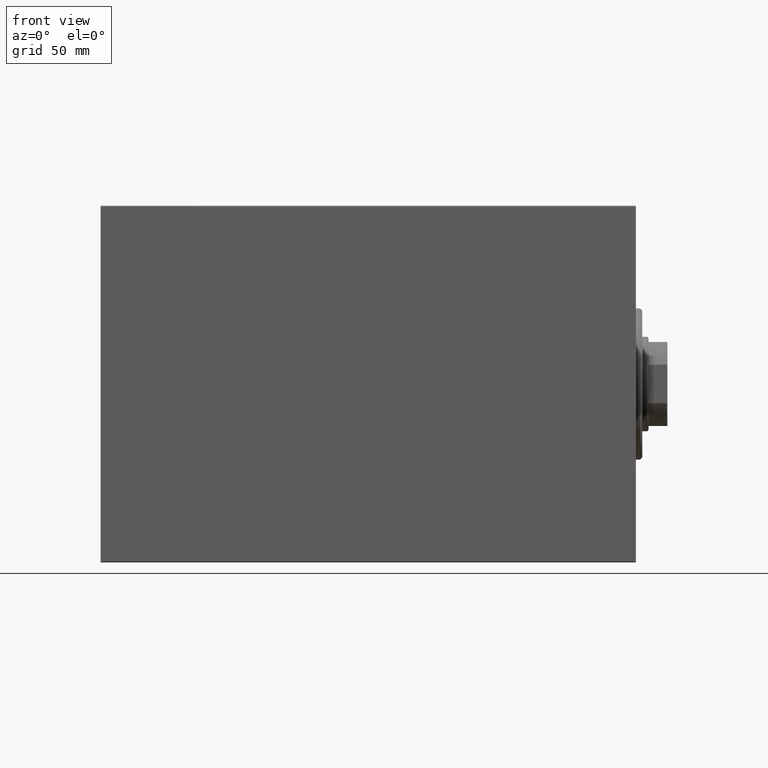
[diagram: clean part render]
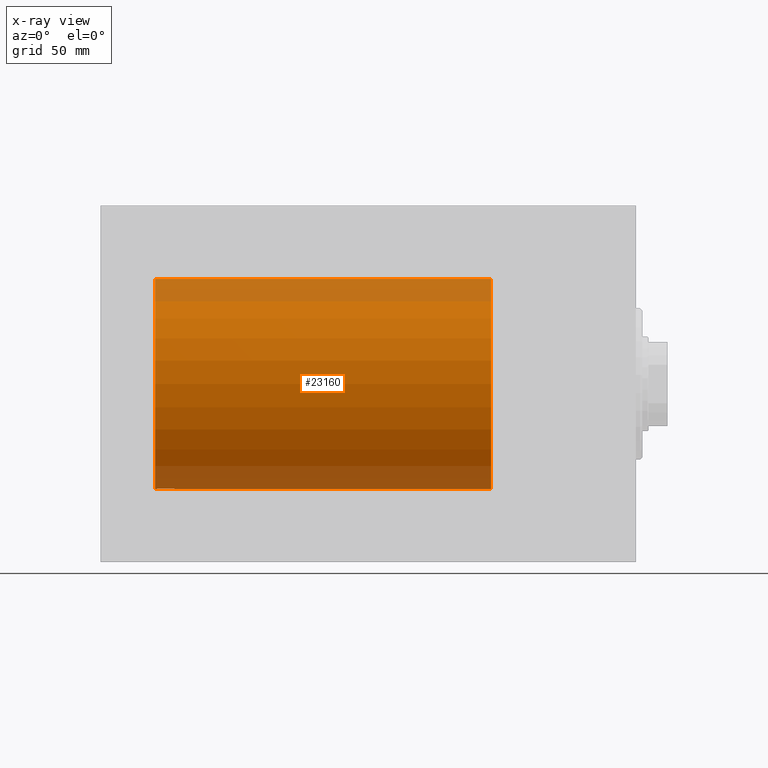
[diagram: x-ray — body ghosted, one internal face saturated and labeled with its STEP entity id]
A machine part, front view, then the same camera in x-ray: the body is ghosted and one INTERNAL B-rep face — a face not visible from any outside direction — is saturated and labeled: STEP entity #23160.
In plain terms, the highlighted cylindrical surface (partial cylindrical patch) has radius 50 mm, axis along (1, 0, 0).
Its self-contained STEP definition (entity closure, byte-faithful):
#260 = CARTESIAN_POINT ( 'NONE',  ( 69.00000000000000000, 0.000000000000000000, 50.00000000000000000 ) ) ;
#751 = CARTESIAN_POINT ( 'NONE',  ( 220.7969643804801194, -2.807099414226288836, 49.92152599098506727 ) ) ;
#1093 = EDGE_CURVE ( 'NONE', #19729, #34649, #15145, .T. ) ;
#1209 = CARTESIAN_POINT ( 'NONE',  ( 219.7768924720100472, -0.5531336717329087271, 49.99769193709643389 ) ) ;
#1338 = VECTOR ( 'NONE', #25519, 1000.000000000000000 ) ;
#1434 = CARTESIAN_POINT ( 'NONE',  ( 221.4068727911404721, -3.378657745070641205, 49.88595615988430154 ) ) ;
#1660 = CARTESIAN_POINT ( 'NONE',  ( 225.8821704948444733, -3.820681512513403710, 49.85392475515401145 ) ) ;
#2617 = CARTESIAN_POINT ( 'NONE',  ( 228.2500000000000284, 4.321082864718244794E-15, 50.00000000000000000 ) ) ;
#2654 = ORIENTED_EDGE ( 'NONE', *, *, #40374, .F. ) ;
#2839 = LINE ( 'NONE', #34415, #10270 ) ;
#3161 = FACE_OUTER_BOUND ( 'NONE', #12407, .T. ) ;
#3184 = DIRECTION ( 'NONE',  ( -1.000000000000000000, 0.000000000000000000, 0.000000000000000000 ) ) ;
#5058 = CARTESIAN_POINT ( 'NONE',  ( 219.8856808669399356, -1.101350136471749952, 49.98862054280448319 ) ) ;
#5692 = DIRECTION ( 'NONE',  ( -1.000000000000000000, -0.000000000000000000, -0.000000000000000000 ) ) ;
#6788 = CARTESIAN_POINT ( 'NONE',  ( 69.00000000000000000, 0.000000000000000000, 0.000000000000000000 ) ) ;
#7230 = EDGE_CURVE ( 'NONE', #28779, #19729, #40266, .T. ) ;
#7579 = CARTESIAN_POINT ( 'NONE',  ( 229.0000000000000000, 0.000000000000000000, 50.00000000000000000 ) ) ;
#7782 = CARTESIAN_POINT ( 'NONE',  ( 227.3751998408197039, -2.597781786597482157, 49.93300953359122474 ) ) ;
#8013 = CARTESIAN_POINT ( 'NONE',  ( 228.2500000000000284, 4.321082864718244794E-15, 50.00000000000000000 ) ) ;
#8597 = EDGE_CURVE ( 'NONE', #12771, #34649, #2839, .T. ) ;
#9087 = EDGE_CURVE ( 'NONE', #12771, #16397, #33379, .T. ) ;
#9101 = CARTESIAN_POINT ( 'NONE',  ( 229.0000000000000000, 6.123233995736764507E-15, -50.00000000000000000 ) ) ;
#9109 = AXIS2_PLACEMENT_3D ( 'NONE', #40913, #9743, #24041 ) ;
#9743 = DIRECTION ( 'NONE',  ( -1.000000000000000000, -0.000000000000000000, -0.000000000000000000 ) ) ;
#10270 = VECTOR ( 'NONE', #44463, 1000.000000000000000 ) ;
#11503 = ORIENTED_EDGE ( 'NONE', *, *, #7230, .T. ) ;
#11615 = AXIS2_PLACEMENT_3D ( 'NONE', #6788, #20861, #38413 ) ;
#11638 = CARTESIAN_POINT ( 'NONE',  ( 227.6860283212195668, -2.133925816755196880, 49.95498245321557818 ) ) ;
#11860 = CARTESIAN_POINT ( 'NONE',  ( 219.7500000000000000, -0.2773743941468524432, 50.00000000000000711 ) ) ;
#12407 = EDGE_LOOP ( 'NONE', ( #2654, #11503, #43826, #34744, #16987, #34485 ) ) ;
#12771 = VERTEX_POINT ( 'NONE', #21195 ) ;
#15036 = CARTESIAN_POINT ( 'NONE',  ( 222.8967670396579024, -4.113647494206500888, 49.83052139214891696 ) ) ;
#15145 = CIRCLE ( 'NONE', #11615, 50.00000000000000000 ) ;
#15259 = CARTESIAN_POINT ( 'NONE',  ( 221.8686360055384910, -3.687400765141549464, 49.86408552998298660 ) ) ;
#15481 = CARTESIAN_POINT ( 'NONE',  ( 224.5540856488015322, -4.222816005855229093, 49.82138837911247009 ) ) ;
#15861 = AXIS2_PLACEMENT_3D ( 'NONE', #16796, #3184, #17701 ) ;
#16397 = VERTEX_POINT ( 'NONE', #2617 ) ;
#16796 = CARTESIAN_POINT ( 'NONE',  ( 229.0000000000000000, 0.000000000000000000, 0.000000000000000000 ) ) ;
#16987 = ORIENTED_EDGE ( 'NONE', *, *, #9087, .T. ) ;
#16990 = CYLINDRICAL_SURFACE ( 'NONE', #9109, 50.00000000000000000 ) ;
#17701 = DIRECTION ( 'NONE',  ( 0.000000000000000000, 0.000000000000000000, 1.000000000000000000 ) ) ;
#17994 = CARTESIAN_POINT ( 'NONE',  ( 219.9672735790269087, -1.369753890039655309, 49.98188917176553048 ) ) ;
#18445 = CARTESIAN_POINT ( 'NONE',  ( 228.0307979615534748, -1.375411031076047230, 49.98173289062309976 ) ) ;
#18554 = CARTESIAN_POINT ( 'NONE',  ( 229.0000000000000000, 6.123233995736764507E-15, -50.00000000000000000 ) ) ;
#18899 = CARTESIAN_POINT ( 'NONE',  ( 224.2772492703792011, -4.250219976861668414, 49.81902879621013369 ) ) ;
#18924 = CARTESIAN_POINT ( 'NONE',  ( 69.00000000000000000, 6.123233995736764507E-15, -50.00000000000000000 ) ) ;
#19729 = VERTEX_POINT ( 'NONE', #18924 ) ;
#20861 = DIRECTION ( 'NONE',  ( -1.000000000000000000, 0.000000000000000000, 0.000000000000000000 ) ) ;
#21182 = CARTESIAN_POINT ( 'NONE',  ( 219.7500000000000284, -2.480218129060122167E-23, 50.00000000000000000 ) ) ;
#21195 = CARTESIAN_POINT ( 'NONE',  ( 219.7500000000000284, -2.480218129060122167E-23, 50.00000000000000000 ) ) ;
#21626 = CARTESIAN_POINT ( 'NONE',  ( 222.6266656342097008, -4.031616700143211496, 49.83731072121799599 ) ) ;
#22532 = CARTESIAN_POINT ( 'NONE',  ( 223.4400213230435668, -4.222042462213144276, 49.82145436824653473 ) ) ;
#23160 = ADVANCED_FACE ( 'NONE', ( #3161 ), #16990, .F. ) ;
#24041 = DIRECTION ( 'NONE',  ( 0.000000000000000000, 0.000000000000000000, 1.000000000000000000 ) ) ;
#25175 = VERTEX_POINT ( 'NONE', #29936 ) ;
#25265 = CARTESIAN_POINT ( 'NONE',  ( 226.5882021467620859, -3.382416624899796442, 49.88570010427955737 ) ) ;
#25519 = DIRECTION ( 'NONE',  ( -1.000000000000000000, -0.000000000000000000, -0.000000000000000000 ) ) ;
#28190 = CIRCLE ( 'NONE', #15861, 50.00000000000000000 ) ;
#28458 = CARTESIAN_POINT ( 'NONE',  ( 220.6211828273626452, -2.593114840406137933, 49.93325460257641879 ) ) ;
#28683 = CARTESIAN_POINT ( 'NONE',  ( 227.8183924898787609, -1.886522330773425793, 49.96505190380066352 ) ) ;
#28779 = VERTEX_POINT ( 'NONE', #18554 ) ;
#28907 = CARTESIAN_POINT ( 'NONE',  ( 223.7160471297329991, -4.249777379711427550, 49.81906655360197789 ) ) ;
#29141 = CARTESIAN_POINT ( 'NONE',  ( 228.2500000000000568, -0.2808785465865656361, 50.00000000000001421 ) ) ;
#29359 = CARTESIAN_POINT ( 'NONE',  ( 220.1789941801477539, -1.881229021238131516, 49.96525240872482954 ) ) ;
#29936 = CARTESIAN_POINT ( 'NONE',  ( 229.0000000000000000, 0.000000000000000000, 50.00000000000000000 ) ) ;
#32105 = CARTESIAN_POINT ( 'NONE',  ( 221.1884693348458200, -3.199146701881685040, 49.89793607725460589 ) ) ;
#32785 = CARTESIAN_POINT ( 'NONE',  ( 225.0973761787904550, -4.115209769591128719, 49.83039196709102470 ) ) ;
#33379 = B_SPLINE_CURVE_WITH_KNOTS ( 'NONE', 3,
 ( #21182, #11860, #1209, #5058, #17994, #29359, #39626, #28458, #751, #32105, #1434, #15259, #38956, #21626, #15036, #22532, #28907, #18899, #15481, #32785, #36433, #1660, #42361, #25265, #39843, #42819, #7782, #11638, #28683, #18445, #35531, #43273, #29141, #8013 ),
 .UNSPECIFIED., .F., .F.,
 ( 4, 2, 2, 2, 2, 2, 2, 2, 2, 2, 2, 2, 2, 2, 2, 2, 4 ),
 ( 0.01329343152928752492, 0.01412407817529631217, 0.01495472482130509942, 0.01578537146731388494, 0.01661601811332267392, 0.01744666475933145944, 0.01827731140534024495, 0.01910795805134903047, 0.01993860469735781946, 0.02076925134336660844, 0.02159989798937539396, 0.02243054463538417947, 0.02326119128139296499, 0.02409183792740175398, 0.02492248457341053949, 0.02575313121941932848, 0.02658377786542811400 ),
 .UNSPECIFIED. ) ;
#34327 = EDGE_CURVE ( 'NONE', #25175, #16397, #42386, .T. ) ;
#34415 = CARTESIAN_POINT ( 'NONE',  ( 229.0000000000000000, 0.000000000000000000, 50.00000000000000000 ) ) ;
#34485 = ORIENTED_EDGE ( 'NONE', *, *, #34327, .F. ) ;
#34649 = VERTEX_POINT ( 'NONE', #260 ) ;
#34744 = ORIENTED_EDGE ( 'NONE', *, *, #8597, .F. ) ;
#35531 = CARTESIAN_POINT ( 'NONE',  ( 228.1124970108033949, -1.108337267831493556, 49.98846998601261760 ) ) ;
#36433 = CARTESIAN_POINT ( 'NONE',  ( 225.3671064755457678, -4.033756670430872049, 49.83713703490974467 ) ) ;
#38413 = DIRECTION ( 'NONE',  ( 0.000000000000000000, 0.000000000000000000, 1.000000000000000000 ) ) ;
#38956 = CARTESIAN_POINT ( 'NONE',  ( 222.1125526060720290, -3.818052230167745531, 49.85412671291930309 ) ) ;
#39626 = CARTESIAN_POINT ( 'NONE',  ( 220.3106284432061841, -2.128188802142371383, 49.95522967821975158 ) ) ;
#39843 = CARTESIAN_POINT ( 'NONE',  ( 226.8069783183931349, -3.203153387937335506, 49.89767833571684008 ) ) ;
#40266 = LINE ( 'NONE', #9101, #44392 ) ;
#40374 = EDGE_CURVE ( 'NONE', #28779, #25175, #28190, .T. ) ;
#40913 = CARTESIAN_POINT ( 'NONE',  ( 229.0000000000000000, 0.000000000000000000, 0.000000000000000000 ) ) ;
#42361 = CARTESIAN_POINT ( 'NONE',  ( 226.1263164487508277, -3.690299572754739188, 49.86386974736159061 ) ) ;
#42386 = LINE ( 'NONE', #7579, #1338 ) ;
#42819 = CARTESIAN_POINT ( 'NONE',  ( 227.1992192796128620, -2.811461347331117633, 49.92127983148852621 ) ) ;
#43273 = CARTESIAN_POINT ( 'NONE',  ( 228.2224263552078014, -0.5587117664567152753, 49.99763378604802000 ) ) ;
#43826 = ORIENTED_EDGE ( 'NONE', *, *, #1093, .T. ) ;
#44392 = VECTOR ( 'NONE', #5692, 1000.000000000000000 ) ;
#44463 = DIRECTION ( 'NONE',  ( -1.000000000000000000, -0.000000000000000000, -0.000000000000000000 ) ) ;